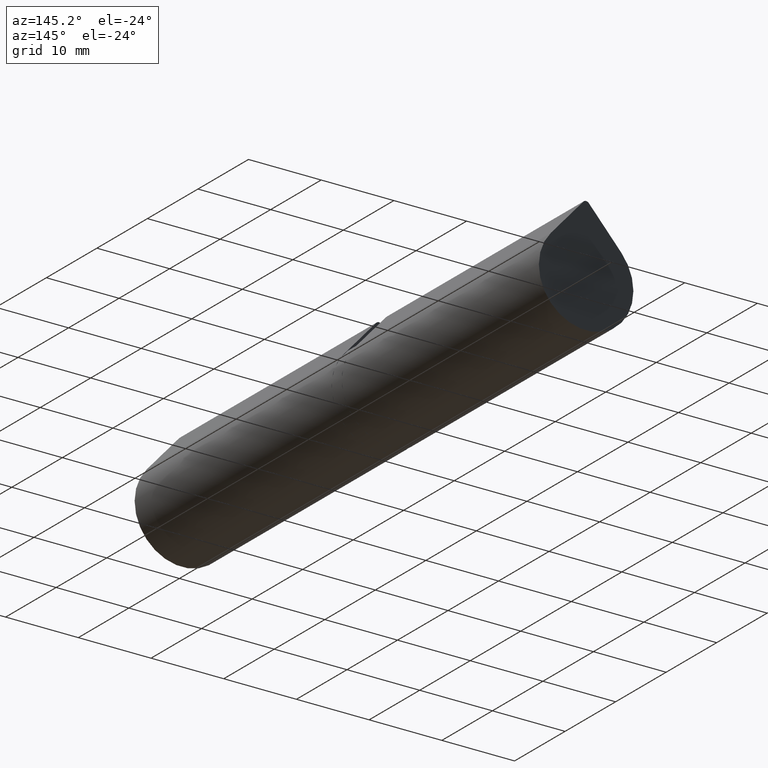
[diagram: clean part render]
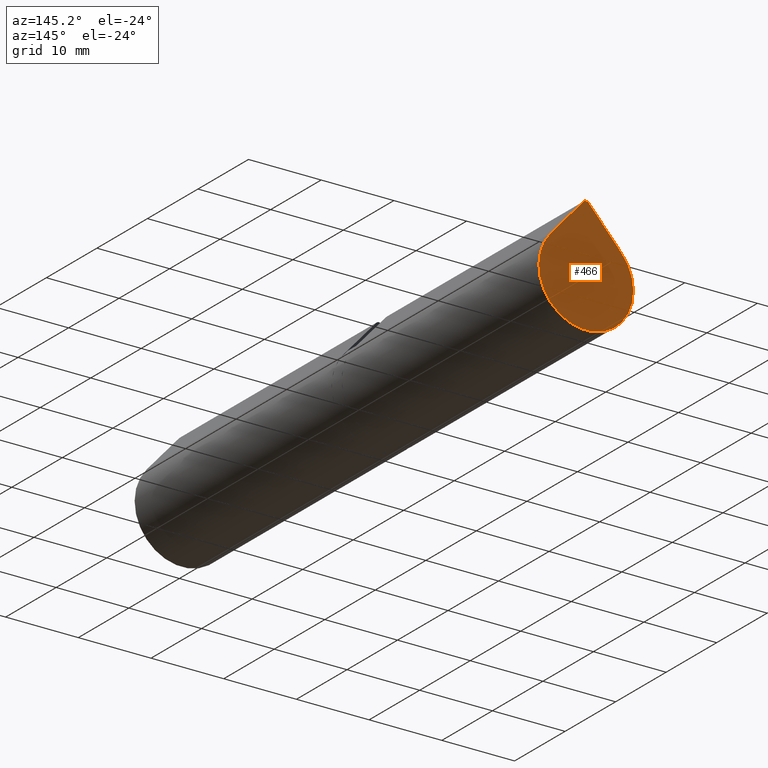
[diagram: same view with one face highlighted and labeled with its STEP entity id]
A machine part, auxiliary view. The second image highlights one B-rep face of the part: STEP entity #466.
In plain terms, the highlighted planar face has unit normal (0, -1, 0).
Its self-contained STEP definition (entity closure, byte-faithful):
#87 = CARTESIAN_POINT ( 'NONE',  ( -4.844813951249543393, -19.50000000000000355, 4.333333333333333925 ) ) ;
#112 = PLANE ( 'NONE',  #9613 ) ;
#286 = EDGE_CURVE ( 'NONE', #1338, #2601, #3206, .T. ) ;
#466 = ADVANCED_FACE ( 'NONE', ( #13730 ), #112, .F. ) ;
#795 = ORIENTED_EDGE ( 'NONE', *, *, #5812, .F. ) ;
#1338 = VERTEX_POINT ( 'NONE', #11660 ) ;
#1611 = CARTESIAN_POINT ( 'NONE',  ( 0.3726779962499633392, -19.50000000000000355, 9.333333333333332149 ) ) ;
#2174 = AXIS2_PLACEMENT_3D ( 'NONE', #10545, #2284, #8637 ) ;
#2284 = DIRECTION ( 'NONE',  ( 0.000000000000000000, 1.000000000000000000, 0.000000000000000000 ) ) ;
#2304 = EDGE_CURVE ( 'NONE', #2601, #6717, #4007, .T. ) ;
#2601 = VERTEX_POINT ( 'NONE', #5364 ) ;
#3200 = ORIENTED_EDGE ( 'NONE', *, *, #286, .F. ) ;
#3206 = CIRCLE ( 'NONE', #2174, 0.4999999999999970024 ) ;
#3225 = VERTEX_POINT ( 'NONE', #9127 ) ;
#3301 = VECTOR ( 'NONE', #7550, 1000.000000000000000 ) ;
#3322 = EDGE_LOOP ( 'NONE', ( #8977, #10572, #3200, #795 ) ) ;
#3505 = DIRECTION ( 'NONE',  ( 0.000000000000000000, 1.000000000000000000, 0.000000000000000000 ) ) ;
#3560 = CARTESIAN_POINT ( 'NONE',  ( 0.000000000000000000, -19.50000000000000355, 0.000000000000000000 ) ) ;
#4007 = LINE ( 'NONE', #1611, #7520 ) ;
#5364 = CARTESIAN_POINT ( 'NONE',  ( 0.3726779962499633392, -19.50000000000000355, 9.333333333333332149 ) ) ;
#5548 = DIRECTION ( 'NONE',  ( 0.000000000000000000, 1.000000000000000000, 0.000000000000000000 ) ) ;
#5812 = EDGE_CURVE ( 'NONE', #3225, #1338, #9153, .T. ) ;
#6717 = VERTEX_POINT ( 'NONE', #7169 ) ;
#6775 = CIRCLE ( 'NONE', #13303, 6.500000000000000000 ) ;
#7169 = CARTESIAN_POINT ( 'NONE',  ( 4.844813951249543393, -19.50000000000000355, 4.333333333333333925 ) ) ;
#7520 = VECTOR ( 'NONE', #13527, 1000.000000000000000 ) ;
#7550 = DIRECTION ( 'NONE',  ( 0.6666666666666668517, 0.000000000000000000, 0.7453559924999297870 ) ) ;
#8637 = DIRECTION ( 'NONE',  ( 0.000000000000000000, 0.000000000000000000, 1.000000000000000000 ) ) ;
#8977 = ORIENTED_EDGE ( 'NONE', *, *, #9683, .F. ) ;
#9127 = CARTESIAN_POINT ( 'NONE',  ( -4.844813951249543393, -19.50000000000000355, 4.333333333333333925 ) ) ;
#9153 = LINE ( 'NONE', #87, #3301 ) ;
#9613 = AXIS2_PLACEMENT_3D ( 'NONE', #9634, #5548, #12858 ) ;
#9634 = CARTESIAN_POINT ( 'NONE',  ( 0.000000000000000000, -19.50000000000000355, 0.000000000000000000 ) ) ;
#9683 = EDGE_CURVE ( 'NONE', #6717, #3225, #6775, .T. ) ;
#10545 = CARTESIAN_POINT ( 'NONE',  ( 0.000000000000000000, -19.50000000000000355, 9.000000000000001776 ) ) ;
#10572 = ORIENTED_EDGE ( 'NONE', *, *, #2304, .F. ) ;
#11023 = DIRECTION ( 'NONE',  ( 0.000000000000000000, 0.000000000000000000, 1.000000000000000000 ) ) ;
#11660 = CARTESIAN_POINT ( 'NONE',  ( -0.3726779962499632837, -19.50000000000000355, 9.333333333333332149 ) ) ;
#12858 = DIRECTION ( 'NONE',  ( 0.000000000000000000, 0.000000000000000000, 1.000000000000000000 ) ) ;
#13303 = AXIS2_PLACEMENT_3D ( 'NONE', #3560, #3505, #11023 ) ;
#13527 = DIRECTION ( 'NONE',  ( 0.6666666666666668517, -0.000000000000000000, -0.7453559924999297870 ) ) ;
#13730 = FACE_OUTER_BOUND ( 'NONE', #3322, .T. ) ;